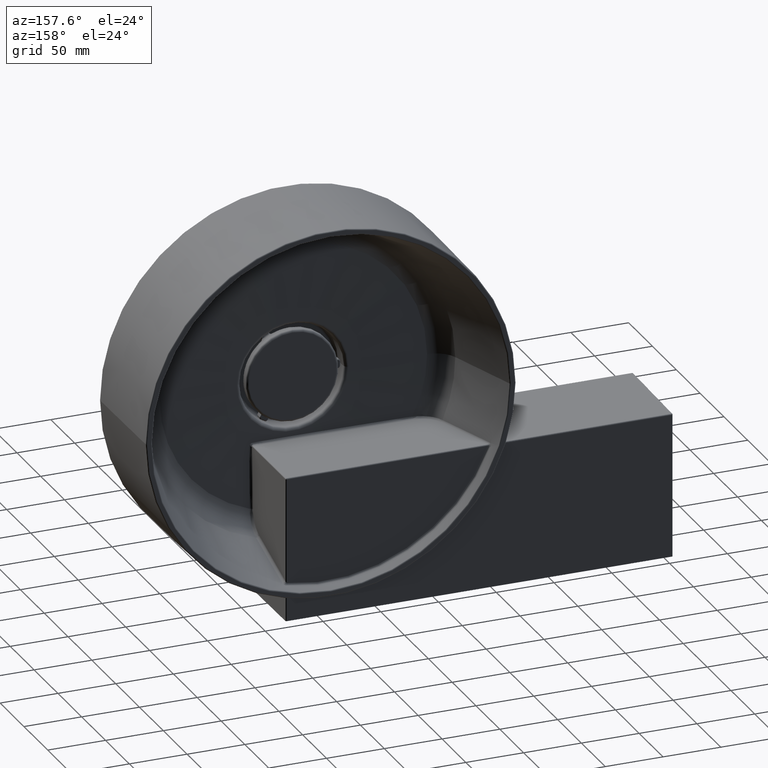
[diagram: clean part render]
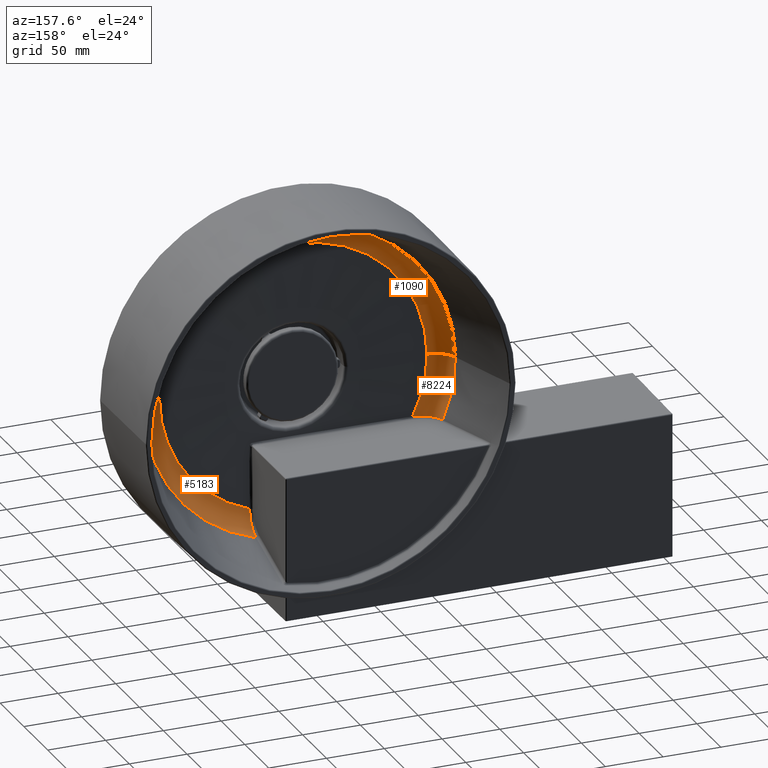
[diagram: same view with one multi-face feature highlighted, each face labeled with its STEP entity id]
A machine part, auxiliary view. The highlighted faces form ONE feature: a constant-radius fillet chain: 3 tangent blend faces with common blend radius 20 mm. The faces share edges in the B-rep.
Their STEP definitions:
[1] entity #5183 (Torus):
#18 = AXIS2_PLACEMENT_3D ( 'NONE', #7461, #784, #3752 ) ;
#298 = CIRCLE ( 'NONE', #5758, 20.00000000000000355 ) ;
#349 = CARTESIAN_POINT ( 'NONE',  ( 37.80338306810761395, 39.00199320476799159, -116.7871101964599632 ) ) ;
#399 = CARTESIAN_POINT ( 'NONE',  ( 38.00544608642567823, 47.71022499953893714, -127.2115506204469995 ) ) ;
#618 = VERTEX_POINT ( 'NONE', #1037 ) ;
#623 = EDGE_CURVE ( 'NONE', #6467, #7626, #1793, .T. ) ;
#784 = DIRECTION ( 'NONE',  ( -1.214623636765614367E-16, -1.000000000000000000, -0.0000000000000000000 ) ) ;
#792 = CARTESIAN_POINT ( 'NONE',  ( -9.684624439845843926E-15, 37.61758012698156506, 0.0000000000000000000 ) ) ;
#1037 = CARTESIAN_POINT ( 'NONE',  ( 134.4338916994192061, 51.59946533649620193, 0.0000000000000000000 ) ) ;
#1045 = CARTESIAN_POINT ( 'NONE',  ( 115.3595526844546839, 57.61358132658170206, 0.0000000000000000000 ) ) ;
#1085 = CARTESIAN_POINT ( 'NONE',  ( 37.72259161016098261, 38.10745693844233273, -113.7128550740939374 ) ) ;
#1135 = CARTESIAN_POINT ( 'NONE',  ( 37.98039118432820516, 45.10646031426412605, -125.3474338181980414 ) ) ;
#1234 = CARTESIAN_POINT ( 'NONE',  ( -1.387778780781445676E-14, 57.61358132658171627, 0.0000000000000000000 ) ) ;
#1744 = EDGE_CURVE ( 'NONE', #6467, #3534, #9373, .T. ) ;
#1793 = B_SPLINE_CURVE_WITH_KNOTS ( 'NONE', 3,
 ( #8481, #1819, #4780, #7757, #1085, #4050, #7027, #349, #3327, #6288, #9271, #2597, #5561, #8536, #1868, #4825, #7806, #1135, #4103, #7077, #399, #3379, #6345, #9325, #2650, #5607 ),
 .UNSPECIFIED., .F., .F.,
 ( 4, 2, 2, 2, 2, 2, 2, 2, 2, 2, 2, 2, 4 ),
 ( 0.0000000000000000000, 0.003193850350138316158, 0.004790775525207496138, 0.006387700700276676552, 0.009581551050415030440, 0.01117847622548420738, 0.01277540140055338259, 0.01596925175069174863, 0.01756617692576091516, 0.01916310210083005394, 0.02235695245096828640, 0.02395387762603739049, 0.02555080280110649457 ),
 .UNSPECIFIED. ) ;
#1819 = CARTESIAN_POINT ( 'NONE',  ( 37.63236565383159160, 37.63806870981262165, -110.5548968657503366 ) ) ;
#1828 = FACE_OUTER_BOUND ( 'NONE', #4791, .T. ) ;
#1868 = CARTESIAN_POINT ( 'NONE',  ( 37.94299865372087766, 42.81539642202024964, -123.1407439755959956 ) ) ;
#2597 = CARTESIAN_POINT ( 'NONE',  ( 37.89095680273425160, 40.91705040511643432, -120.5682057719001392 ) ) ;
#2650 = CARTESIAN_POINT ( 'NONE',  ( 38.01604970887958501, 51.08956405705062309, -128.7790864045347803 ) ) ;
#2768 = EDGE_CURVE ( 'NONE', #7626, #618, #5453, .T. ) ;
#3327 = CARTESIAN_POINT ( 'NONE',  ( 37.82736140891255161, 39.40352691188117262, -117.7671741959554339 ) ) ;
#3379 = CARTESIAN_POINT ( 'NONE',  ( 38.01192348228882878, 49.12207592214532781, -127.9479928985211359 ) ) ;
#3534 = VERTEX_POINT ( 'NONE', #5171 ) ;
#3679 = TOROIDAL_SURFACE ( 'NONE', #9112, 115.3595526844546981, 20.00000000000001066 ) ;
#3752 = DIRECTION ( 'NONE',  ( 1.000000000000000000, -1.032313178795999416E-16, 0.0000000000000000000 ) ) ;
#3760 = DIRECTION ( 'NONE',  ( -1.214623636765614367E-16, -1.000000000000000000, -0.0000000000000000000 ) ) ;
#3914 = AXIS2_PLACEMENT_3D ( 'NONE', #792, #3760, #6733 ) ;
#4010 = DIRECTION ( 'NONE',  ( -0.0000000000000000000, 0.0000000000000000000, 1.000000000000000000 ) ) ;
#4046 = CARTESIAN_POINT ( 'NONE',  ( 37.59935606473698044, 37.61758012698155795, -109.4830760677409103 ) ) ;
#4050 = CARTESIAN_POINT ( 'NONE',  ( 37.75064879918534189, 38.36139856739780640, -114.7517639135197669 ) ) ;
#4103 = CARTESIAN_POINT ( 'NONE',  ( 37.98545535695203057, 45.52312931992285172, -125.6853994526793201 ) ) ;
#4198 = DIRECTION ( 'NONE',  ( 1.214623636765614367E-16, 1.000000000000000000, 0.0000000000000000000 ) ) ;
#4780 = CARTESIAN_POINT ( 'NONE',  ( 37.66365609901140488, 37.73666331089683723, -111.6157081480794915 ) ) ;
#4791 = EDGE_LOOP ( 'NONE', ( #9286, #8904, #5359, #8424 ) ) ;
#4825 = CARTESIAN_POINT ( 'NONE',  ( 37.96306546308538543, 43.92284113016172142, -124.2794861708760408 ) ) ;
#5171 = CARTESIAN_POINT ( 'NONE',  ( 115.7594727084466797, 37.61758012698155085, 0.0000000000000000000 ) ) ;
#5183 = ADVANCED_FACE ( 'NONE', ( #1828 ), #3679, .F. ) ;
#5359 = ORIENTED_EDGE ( 'NONE', *, *, #2768, .F. ) ;
#5453 = CIRCLE ( 'NONE', #18, 134.4338916994192061 ) ;
#5561 = CARTESIAN_POINT ( 'NONE',  ( 37.90053346131929146, 41.21082285373481113, -121.0187117121364366 ) ) ;
#5607 = CARTESIAN_POINT ( 'NONE',  ( 38.01594466933054406, 51.59946533649620903, -128.9467300413219846 ) ) ;
#5758 = AXIS2_PLACEMENT_3D ( 'NONE', #1045, #4010, #6985 ) ;
#6288 = CARTESIAN_POINT ( 'NONE',  ( 37.86038486951768078, 40.11438144485286017, -119.1883701550735566 ) ) ;
#6345 = CARTESIAN_POINT ( 'NONE',  ( 38.01351891881679279, 49.60307008786301708, -128.1747966768948572 ) ) ;
#6467 = VERTEX_POINT ( 'NONE', #4046 ) ;
#6733 = DIRECTION ( 'NONE',  ( 1.000000000000000000, -1.198846840186222324E-16, 0.0000000000000000000 ) ) ;
#6985 = DIRECTION ( 'NONE',  ( 1.000000000000000000, 0.0000000000000000000, 0.0000000000000000000 ) ) ;
#7027 = CARTESIAN_POINT ( 'NONE',  ( 37.76426553938544117, 38.50823048037037921, -115.2681263733442734 ) ) ;
#7077 = CARTESIAN_POINT ( 'NONE',  ( 37.99888555393204825, 46.81030966364830448, -126.6462233966280166 ) ) ;
#7175 = DIRECTION ( 'NONE',  ( 1.000000000000000000, -1.214623636765614367E-16, 0.0000000000000000000 ) ) ;
#7461 = CARTESIAN_POINT ( 'NONE',  ( -7.986351613643838256E-15, 51.59946533649621614, 0.0000000000000000000 ) ) ;
#7626 = VERTEX_POINT ( 'NONE', #8365 ) ;
#7757 = CARTESIAN_POINT ( 'NONE',  ( 37.70816230972244654, 38.00023602398837852, -113.1906158104824129 ) ) ;
#7806 = CARTESIAN_POINT ( 'NONE',  ( 37.96920393718310294, 44.30708330008764051, -124.6450391315403579 ) ) ;
#8365 = CARTESIAN_POINT ( 'NONE',  ( 38.01594466933054406, 51.59946533649620903, -128.9467300413219846 ) ) ;
#8424 = ORIENTED_EDGE ( 'NONE', *, *, #623, .F. ) ;
#8481 = CARTESIAN_POINT ( 'NONE',  ( 37.59935606473698044, 37.61758012698155795, -109.4830760677409103 ) ) ;
#8536 = CARTESIAN_POINT ( 'NONE',  ( 37.92742962867713175, 42.13721128799789994, -122.3257171302321211 ) ) ;
#8904 = ORIENTED_EDGE ( 'NONE', *, *, #9413, .T. ) ;
#9112 = AXIS2_PLACEMENT_3D ( 'NONE', #1234, #4198, #7175 ) ;
#9271 = CARTESIAN_POINT ( 'NONE',  ( 37.87090009255092582, 40.36950169881048112, -119.6539177090164969 ) ) ;
#9286 = ORIENTED_EDGE ( 'NONE', *, *, #1744, .T. ) ;
#9325 = CARTESIAN_POINT ( 'NONE',  ( 38.01558295653229180, 50.58628390296648547, -128.5902021214450315 ) ) ;
#9373 = CIRCLE ( 'NONE', #3914, 115.7594727084466939 ) ;
#9413 = EDGE_CURVE ( 'NONE', #3534, #618, #298, .T. ) ;
[2] entity #1090 (Torus):
#298 = CIRCLE ( 'NONE', #5758, 20.00000000000000355 ) ;
#618 = VERTEX_POINT ( 'NONE', #1037 ) ;
#776 = DIRECTION ( 'NONE',  ( -1.000000000000000000, 0.0000000000000000000, -1.224646799147353454E-16 ) ) ;
#1022 = AXIS2_PLACEMENT_3D ( 'NONE', #9043, #2373, #5330 ) ;
#1037 = CARTESIAN_POINT ( 'NONE',  ( 134.4338916994192061, 51.59946533649620193, 0.0000000000000000000 ) ) ;
#1045 = CARTESIAN_POINT ( 'NONE',  ( 115.3595526844546839, 57.61358132658170206, 0.0000000000000000000 ) ) ;
#1090 = ADVANCED_FACE ( 'NONE', ( #5645 ), #3016, .F. ) ;
#1362 = DIRECTION ( 'NONE',  ( 1.000000000000000000, -1.214623636765614367E-16, 0.0000000000000000000 ) ) ;
#1439 = CARTESIAN_POINT ( 'NONE',  ( -9.684624439845843926E-15, 37.61758012698156506, 0.0000000000000000000 ) ) ;
#2217 = VERTEX_POINT ( 'NONE', #8801 ) ;
#2351 = AXIS2_PLACEMENT_3D ( 'NONE', #1439, #4398, #7381 ) ;
#2373 = DIRECTION ( 'NONE',  ( -1.214623636765614367E-16, -1.000000000000000000, -0.0000000000000000000 ) ) ;
#3016 = TOROIDAL_SURFACE ( 'NONE', #5486, 115.3595526844546981, 20.00000000000001066 ) ;
#3481 = EDGE_CURVE ( 'NONE', #3534, #2217, #7792, .T. ) ;
#3534 = VERTEX_POINT ( 'NONE', #5171 ) ;
#4008 = EDGE_LOOP ( 'NONE', ( #6652, #7147, #4208, #8837 ) ) ;
#4010 = DIRECTION ( 'NONE',  ( -0.0000000000000000000, 0.0000000000000000000, 1.000000000000000000 ) ) ;
#4208 = ORIENTED_EDGE ( 'NONE', *, *, #4757, .F. ) ;
#4398 = DIRECTION ( 'NONE',  ( -1.214623636765614367E-16, -1.000000000000000000, -0.0000000000000000000 ) ) ;
#4467 = CARTESIAN_POINT ( 'NONE',  ( -115.3595526844547123, 57.61358132658173048, -1.412747069460879032E-14 ) ) ;
#4757 = EDGE_CURVE ( 'NONE', #618, #4949, #5213, .T. ) ;
#4949 = VERTEX_POINT ( 'NONE', #9488 ) ;
#5045 = CARTESIAN_POINT ( 'NONE',  ( -1.387778780781445676E-14, 57.61358132658171627, 0.0000000000000000000 ) ) ;
#5103 = AXIS2_PLACEMENT_3D ( 'NONE', #4467, #7452, #776 ) ;
#5171 = CARTESIAN_POINT ( 'NONE',  ( 115.7594727084466797, 37.61758012698155085, 0.0000000000000000000 ) ) ;
#5213 = CIRCLE ( 'NONE', #1022, 134.4338916994192061 ) ;
#5330 = DIRECTION ( 'NONE',  ( 1.000000000000000000, -1.032313178795999416E-16, 0.0000000000000000000 ) ) ;
#5486 = AXIS2_PLACEMENT_3D ( 'NONE', #5045, #8027, #1362 ) ;
#5645 = FACE_OUTER_BOUND ( 'NONE', #4008, .T. ) ;
#5758 = AXIS2_PLACEMENT_3D ( 'NONE', #1045, #4010, #6985 ) ;
#6652 = ORIENTED_EDGE ( 'NONE', *, *, #3481, .T. ) ;
#6985 = DIRECTION ( 'NONE',  ( 1.000000000000000000, 0.0000000000000000000, 0.0000000000000000000 ) ) ;
#7147 = ORIENTED_EDGE ( 'NONE', *, *, #8052, .T. ) ;
#7381 = DIRECTION ( 'NONE',  ( 1.000000000000000000, -1.198846840186222324E-16, 0.0000000000000000000 ) ) ;
#7452 = DIRECTION ( 'NONE',  ( 1.224646799147353207E-16, -1.487484948933726914E-32, -1.000000000000000000 ) ) ;
#7792 = CIRCLE ( 'NONE', #2351, 115.7594727084466939 ) ;
#8027 = DIRECTION ( 'NONE',  ( 1.214623636765614367E-16, 1.000000000000000000, 0.0000000000000000000 ) ) ;
#8052 = EDGE_CURVE ( 'NONE', #2217, #4949, #9320, .T. ) ;
#8801 = CARTESIAN_POINT ( 'NONE',  ( -115.7594727084467081, 37.61758012698157927, -1.531992514450001495E-14 ) ) ;
#8837 = ORIENTED_EDGE ( 'NONE', *, *, #9413, .F. ) ;
#9043 = CARTESIAN_POINT ( 'NONE',  ( -7.986351613643838256E-15, 51.59946533649621614, 0.0000000000000000000 ) ) ;
#9320 = CIRCLE ( 'NONE', #5103, 20.00000000000000355 ) ;
#9413 = EDGE_CURVE ( 'NONE', #3534, #618, #298, .T. ) ;
#9488 = CARTESIAN_POINT ( 'NONE',  ( -134.4338916994192061, 51.59946533649623035, -1.770868383702169800E-14 ) ) ;
[3] entity #8224 (Torus):
#270 = CARTESIAN_POINT ( 'NONE',  ( -117.7036013318668353, 43.06568690876767391, -53.02055548928630202 ) ) ;
#317 = CARTESIAN_POINT ( 'NONE',  ( -1.387778780781445676E-14, 57.61358132658171627, 0.0000000000000000000 ) ) ;
#321 = CARTESIAN_POINT ( 'NONE',  ( -104.3051025564476220, 37.63761612065405160, -52.47713893114830341 ) ) ;
#759 = ORIENTED_EDGE ( 'NONE', *, *, #9188, .F. ) ;
#776 = DIRECTION ( 'NONE',  ( -1.000000000000000000, 0.0000000000000000000, -1.224646799147353454E-16 ) ) ;
#924 = CIRCLE ( 'NONE', #2182, 134.4338916994192061 ) ;
#1005 = CARTESIAN_POINT ( 'NONE',  ( -120.9860909821185118, 46.69567969880971958, -53.16046015747552644 ) ) ;
#1057 = FACE_OUTER_BOUND ( 'NONE', #9075, .T. ) ;
#1060 = CARTESIAN_POINT ( 'NONE',  ( -108.5966979807333956, 38.30958877764788895, -52.65175684856414051 ) ) ;
#1743 = CARTESIAN_POINT ( 'NONE',  ( -122.6123296157745557, 49.55190360692454732, -53.23665841159635903 ) ) ;
#1792 = CARTESIAN_POINT ( 'NONE',  ( -111.7102907667247109, 39.36037049963401557, -52.77725852694352682 ) ) ;
#2182 = AXIS2_PLACEMENT_3D ( 'NONE', #9632, #2959, #5930 ) ;
#2215 = EDGE_CURVE ( 'NONE', #2217, #4313, #4539, .T. ) ;
#2217 = VERTEX_POINT ( 'NONE', #8801 ) ;
#2368 = ORIENTED_EDGE ( 'NONE', *, *, #8052, .F. ) ;
#2422 = CARTESIAN_POINT ( 'NONE',  ( -103.2044930379168761, 37.61758012698157927, -52.43174742962685286 ) ) ;
#2471 = CARTESIAN_POINT ( 'NONE',  ( -123.4251817020048776, 51.59946533649623035, -53.27941215214612214 ) ) ;
#2483 = B_SPLINE_CURVE_WITH_KNOTS ( 'NONE', 3,
 ( #2471, #5428, #8408, #1743, #4700, #7681, #1005, #3974, #6951, #270, #3251, #6215, #9194, #2521, #5476, #8456, #1792, #4749, #7731, #1060, #4026, #7002, #321, #3300 ),
 .UNSPECIFIED., .F., .F.,
 ( 4, 2, 2, 2, 2, 2, 2, 2, 2, 2, 2, 4 ),
 ( 6.938893903907228378E-18, 0.001652237577429006062, 0.003304475154858005186, 0.006608950309715984350, 0.009913425464573964382, 0.01156566304200293098, 0.01321790061943189758, 0.01652237577428984291, 0.01817461335171881645, 0.01982685092914778999, 0.02313132608400568502, 0.02643580123886358352 ),
 .UNSPECIFIED. ) ;
#2521 = CARTESIAN_POINT ( 'NONE',  ( -114.6331947767801438, 40.80570376313929160, -52.89505896990753797 ) ) ;
#2857 = DIRECTION ( 'NONE',  ( -1.214623636765614367E-16, -1.000000000000000000, -0.0000000000000000000 ) ) ;
#2959 = DIRECTION ( 'NONE',  ( -1.214623636765614367E-16, -1.000000000000000000, -0.0000000000000000000 ) ) ;
#3182 = ORIENTED_EDGE ( 'NONE', *, *, #2215, .T. ) ;
#3251 = CARTESIAN_POINT ( 'NONE',  ( -117.2836133618565242, 42.70739880325150750, -53.00321104142850714 ) ) ;
#3295 = DIRECTION ( 'NONE',  ( 1.214623636765614367E-16, 1.000000000000000000, 0.0000000000000000000 ) ) ;
#3300 = CARTESIAN_POINT ( 'NONE',  ( -103.2044930379168761, 37.61758012698157927, -52.43174742962685286 ) ) ;
#3353 = CARTESIAN_POINT ( 'NONE',  ( -123.4251817020048776, 51.59946533649623035, -53.27941215214612214 ) ) ;
#3974 = CARTESIAN_POINT ( 'NONE',  ( -119.6510133877388427, 44.98609748502889971, -53.10221248906142222 ) ) ;
#4026 = CARTESIAN_POINT ( 'NONE',  ( -107.5375194105224352, 38.06834910966593810, -52.60891149110014453 ) ) ;
#4313 = VERTEX_POINT ( 'NONE', #2422 ) ;
#4467 = CARTESIAN_POINT ( 'NONE',  ( -115.3595526844547123, 57.61358132658173048, -1.412747069460879032E-14 ) ) ;
#4539 = CIRCLE ( 'NONE', #8757, 115.7594727084466939 ) ;
#4700 = CARTESIAN_POINT ( 'NONE',  ( -122.3696771435450330, 49.05441120772000829, -53.22476840568267420 ) ) ;
#4749 = CARTESIAN_POINT ( 'NONE',  ( -110.6842828090209849, 38.96520646670749954, -52.73594176021803293 ) ) ;
#4830 = EDGE_CURVE ( 'NONE', #5725, #4313, #2483, .T. ) ;
#4949 = VERTEX_POINT ( 'NONE', #9488 ) ;
#4950 = AXIS2_PLACEMENT_3D ( 'NONE', #317, #3295, #6259 ) ;
#5103 = AXIS2_PLACEMENT_3D ( 'NONE', #4467, #7452, #776 ) ;
#5428 = CARTESIAN_POINT ( 'NONE',  ( -123.2496459056583404, 51.07592584429394122, -53.26954626204145882 ) ) ;
#5476 = CARTESIAN_POINT ( 'NONE',  ( -113.6896840492854466, 40.27235055673494202, -52.85698525877513276 ) ) ;
#5725 = VERTEX_POINT ( 'NONE', #3353 ) ;
#5827 = DIRECTION ( 'NONE',  ( 1.000000000000000000, -1.198846840186222324E-16, 0.0000000000000000000 ) ) ;
#5930 = DIRECTION ( 'NONE',  ( 1.000000000000000000, -1.032313178795999416E-16, 0.0000000000000000000 ) ) ;
#6215 = CARTESIAN_POINT ( 'NONE',  ( -116.4253838802567316, 42.03122736317521202, -52.96798323925928287 ) ) ;
#6259 = DIRECTION ( 'NONE',  ( 1.000000000000000000, -1.214623636765614367E-16, 0.0000000000000000000 ) ) ;
#6951 = CARTESIAN_POINT ( 'NONE',  ( -118.9139870085159458, 44.18532619765161229, -53.07095517051260458 ) ) ;
#7002 = CARTESIAN_POINT ( 'NONE',  ( -105.3917233416633934, 37.73235409137719643, -52.52160224609831829 ) ) ;
#7292 = CARTESIAN_POINT ( 'NONE',  ( -9.684624439845843926E-15, 37.61758012698156506, 0.0000000000000000000 ) ) ;
#7452 = DIRECTION ( 'NONE',  ( 1.224646799147353207E-16, -1.487484948933726914E-32, -1.000000000000000000 ) ) ;
#7681 = CARTESIAN_POINT ( 'NONE',  ( -121.5842052265496420, 47.60444168746706595, -53.18745063758508707 ) ) ;
#7731 = CARTESIAN_POINT ( 'NONE',  ( -110.1639215914581769, 38.78641473221782121, -52.71497922791494517 ) ) ;
#8052 = EDGE_CURVE ( 'NONE', #2217, #4949, #9320, .T. ) ;
#8117 = ORIENTED_EDGE ( 'NONE', *, *, #4830, .F. ) ;
#8224 = ADVANCED_FACE ( 'NONE', ( #1057 ), #9156, .F. ) ;
#8408 = CARTESIAN_POINT ( 'NONE',  ( -123.0518068586357003, 50.56177342940783603, -53.25902362337006934 ) ) ;
#8456 = CARTESIAN_POINT ( 'NONE',  ( -112.2128662401551793, 39.57542225389563839, -52.79748937213094706 ) ) ;
#8757 = AXIS2_PLACEMENT_3D ( 'NONE', #7292, #2857, #5827 ) ;
#8801 = CARTESIAN_POINT ( 'NONE',  ( -115.7594727084467081, 37.61758012698157927, -1.531992514450001495E-14 ) ) ;
#9075 = EDGE_LOOP ( 'NONE', ( #2368, #3182, #8117, #759 ) ) ;
#9156 = TOROIDAL_SURFACE ( 'NONE', #4950, 115.3595526844546981, 20.00000000000001066 ) ;
#9188 = EDGE_CURVE ( 'NONE', #4949, #5725, #924, .T. ) ;
#9194 = CARTESIAN_POINT ( 'NONE',  ( -115.9852678541206785, 41.71156388215659661, -52.95002167904576851 ) ) ;
#9320 = CIRCLE ( 'NONE', #5103, 20.00000000000000355 ) ;
#9488 = CARTESIAN_POINT ( 'NONE',  ( -134.4338916994192061, 51.59946533649623035, -1.770868383702169800E-14 ) ) ;
#9632 = CARTESIAN_POINT ( 'NONE',  ( -7.986351613643838256E-15, 51.59946533649621614, 0.0000000000000000000 ) ) ;